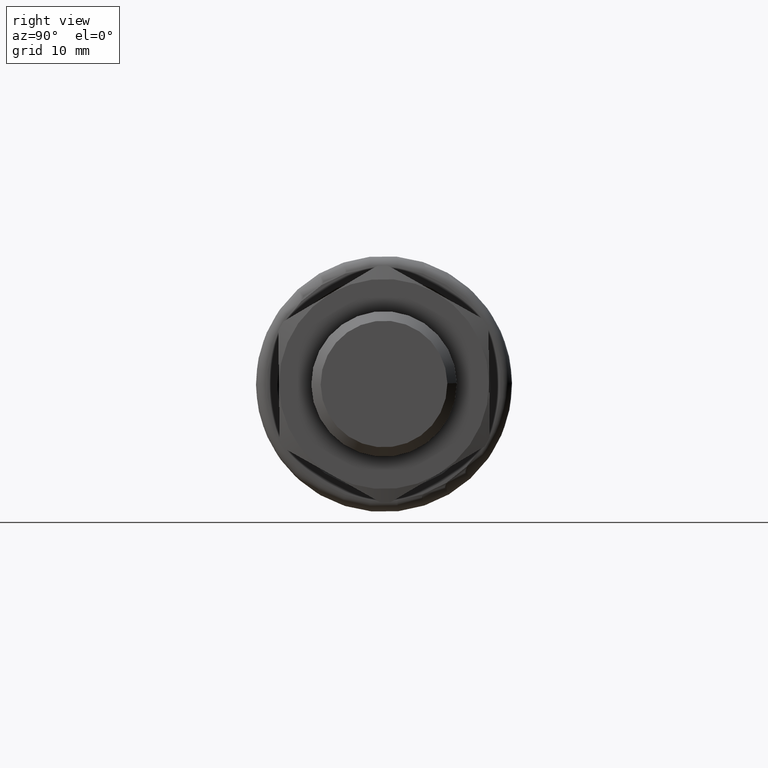
[diagram: clean part render]
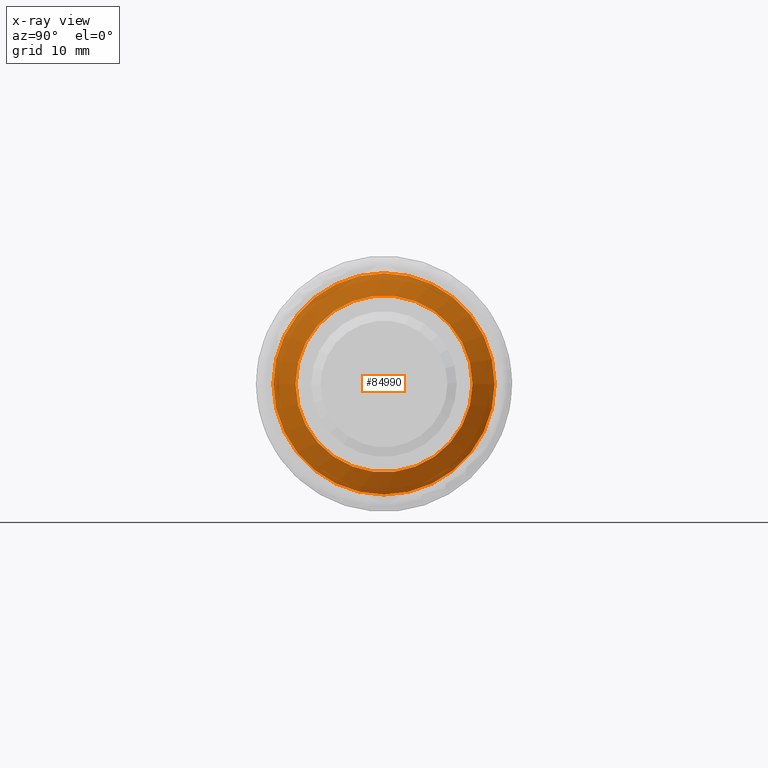
[diagram: x-ray — body ghosted, one internal face saturated and labeled with its STEP entity id]
A machine part, right view, then the same camera in x-ray: the body is ghosted and one INTERNAL B-rep face — a face not visible from any outside direction — is saturated and labeled: STEP entity #84990.
In plain terms, the highlighted conical surface has half-angle 60 deg.
Its self-contained STEP definition (entity closure, byte-faithful):
#84959=CARTESIAN_POINT('',(7.449999999999997,8.0,0.0));
#84960=VERTEX_POINT('',#84959);
#84961=CARTESIAN_POINT('',(7.449999999999997,0.0,0.0));
#84962=DIRECTION('',(1.0,0.0,0.0));
#84963=DIRECTION('',(0.0,1.0,0.0));
#84964=AXIS2_PLACEMENT_3D('',#84961,#84962,#84963);
#84965=CIRCLE('',#84964,8.0);
#84966=EDGE_CURVE('',#84960,#84960,#84965,.T.);
#84971=CARTESIAN_POINT('',(6.872649730810371,0.0,0.0));
#84972=DIRECTION('',(-1.0,0.0,0.0));
#84973=DIRECTION('',(0.0,1.0,0.0));
#84974=AXIS2_PLACEMENT_3D('',#84971,#84972,#84973);
#84975=CONICAL_SURFACE('',#84974,9.0,60.000000000000007);
#84976=ORIENTED_EDGE('',*,*,#84966,.F.);
#84977=EDGE_LOOP('',(#84976));
#84978=FACE_OUTER_BOUND('',#84977,.T.);
#84979=CARTESIAN_POINT('',(6.295299461620746,10.0,0.0));
#84980=VERTEX_POINT('',#84979);
#84981=CARTESIAN_POINT('',(6.295299461620746,0.0,0.0));
#84982=DIRECTION('',(1.0,0.0,0.0));
#84983=DIRECTION('',(0.0,1.0,0.0));
#84984=AXIS2_PLACEMENT_3D('',#84981,#84982,#84983);
#84985=CIRCLE('',#84984,10.0);
#84986=EDGE_CURVE('',#84980,#84980,#84985,.T.);
#84987=ORIENTED_EDGE('',*,*,#84986,.T.);
#84988=EDGE_LOOP('',(#84987));
#84989=FACE_BOUND('',#84988,.T.);
#84990=ADVANCED_FACE('',(#84978,#84989),#84975,.T.);